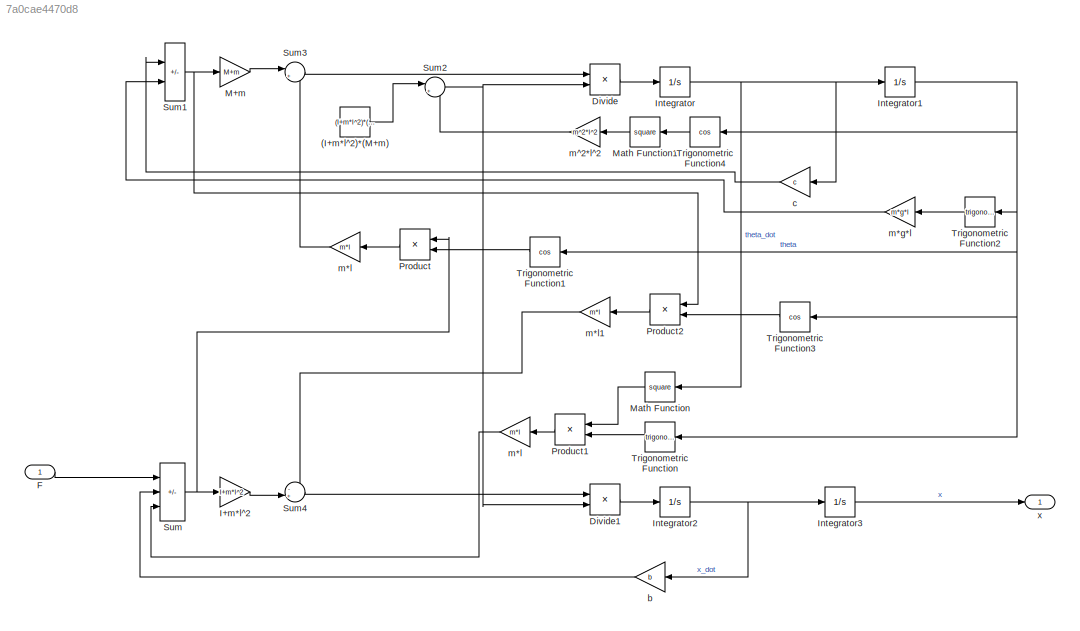
MODEL slx_7a0cae4470d8
KIND model
CONFIG AbsTol = auto
CONFIG EnableMultiTasking = off
CONFIG FixedStep = STEP_SIZE
CONFIG MaxStep = auto
CONFIG MinStep = auto
CONFIG RelTol = 1e-3
CONFIG SampleTimeConstraint = Unconstrained
CONFIG Solver = ode4
CONFIG SolverName = ode4
CONFIG StartTime = 0.0
CONFIG StopTime = SIM_TIME
BLOCK [Constant] (I+m*l^2)*(M+m)
  Value = (I+m*l^2)*(M+m)
BLOCK [Product] Divide
  Inputs = */
  Ports = [2, 1]
BLOCK [Product] Divide1
  Inputs = */
  Ports = [2, 1]
BLOCK [Inport] F
BLOCK [Gain] I+m*l^2
  Gain = I+m*l^2
BLOCK [Integrator] Integrator
  ContinuousStateAttributes = 'pendulum.angular.velocity'
  InitialCondition = theta_dot0
  Ports = [1, 1]
  Priority = 1
BLOCK [Integrator] Integrator1
  ContinuousStateAttributes = 'pendulum.angular.position'
  InitialCondition = theta0
  LowerSaturationLimit = -pi
  Ports = [1, 1]
  Priority = 2
  UpperSaturationLimit = pi
BLOCK [Integrator] Integrator2
  ContinuousStateAttributes = 'trolley.horizontal.velocity'
  InitialCondition = x_dot0
  Ports = [1, 1]
  Priority = 3
BLOCK [Integrator] Integrator3
  ContinuousStateAttributes = 'trolley.horizontal.position'
  InitialCondition = x0
  Ports = [1, 1]
  Priority = 4
BLOCK [Gain] M+m
  Gain = M+m
BLOCK [Math] Math Function
  Operator = square
  Ports = [1, 1]
BLOCK [Math] Math Function1
  Operator = square
  Ports = [1, 1]
BLOCK [Product] Product
  Ports = [2, 1]
BLOCK [Product] Product1
  Ports = [2, 1]
BLOCK [Product] Product2
  Ports = [2, 1]
BLOCK [Sum] Sum
  IconShape = rectangular
  Inputs = +-+
  Ports = [3, 1]
BLOCK [Sum] Sum1
  IconShape = rectangular
  Inputs = --
  Ports = [2, 1]
BLOCK [Sum] Sum2
  Inputs = |+-
  Ports = [2, 1]
BLOCK [Sum] Sum3
  Inputs = |+-
  Ports = [2, 1]
BLOCK [Sum] Sum4
  Inputs = -+|
  Ports = [2, 1]
BLOCK [Trigonometry] Trigonometric Function
  Ports = [1, 1]
BLOCK [Trigonometry] Trigonometric Function1
  Operator = cos
  Ports = [1, 1]
BLOCK [Trigonometry] Trigonometric Function2
  Ports = [1, 1]
BLOCK [Trigonometry] Trigonometric Function3
  Operator = cos
  Ports = [1, 1]
BLOCK [Trigonometry] Trigonometric Function4
  Operator = cos
  Ports = [1, 1]
BLOCK [Gain] b
  Gain = b
BLOCK [Gain] c
  Gain = c
BLOCK [Gain] m*g*l
  Gain = m*g*l
BLOCK [Gain] m*l
  Gain = m*l
BLOCK [Gain] m*l 
  Gain = m*l
BLOCK [Gain] m*l1
  Gain = m*l
BLOCK [Gain] m^2*l^2
  Gain = m^2*l^2
BLOCK [Outport] x
LINE (I+m*l^2)*(M+m):1 -> Sum2:1
LINE Divide1:1 -> Integrator2:1
LINE Divide:1 -> Integrator:1
LINE F:1 -> Sum:1
LINE I+m*l^2:1 -> Sum4:2
NET Integrator1:1 -> Trigonometric Function1:1, Trigonometric Function2:1, Trigonometric Function3:1, Trigonometric Function4:1, Trigonometric Function:1
NET Integrator2:1 -> Integrator3:1, b:1
LINE Integrator3:1 -> x:1
NET Integrator:1 -> Integrator1:1, Math Function:1, c:1
LINE M+m:1 -> Sum3:1
LINE Math Function1:1 -> m^2*l^2:1
LINE Math Function:1 -> Product1:1
LINE Product1:1 -> m*l :1
LINE Product2:1 -> m*l1:1
LINE Product:1 -> m*l:1
NET Sum1:1 -> M+m:1, Product2:1
NET Sum2:1 -> Divide1:2, Divide:2
LINE Sum3:1 -> Divide:1
LINE Sum4:1 -> Divide1:1
NET Sum:1 -> I+m*l^2:1, Product:1
LINE Trigonometric Function1:1 -> Product:2
LINE Trigonometric Function2:1 -> m*g*l:1
LINE Trigonometric Function3:1 -> Product2:2
LINE Trigonometric Function4:1 -> Math Function1:1
LINE Trigonometric Function:1 -> Product1:2
LINE b:1 -> Sum:2
LINE c:1 -> Sum1:1
LINE m*g*l:1 -> Sum1:2
LINE m*l :1 -> Sum:3
LINE m*l1:1 -> Sum4:1
LINE m*l:1 -> Sum3:2
LINE m^2*l^2:1 -> Sum2:2
note: NET lines group one-source signal fan-out (src -> all destinations, sorted); 1:1 wires keep LINE
